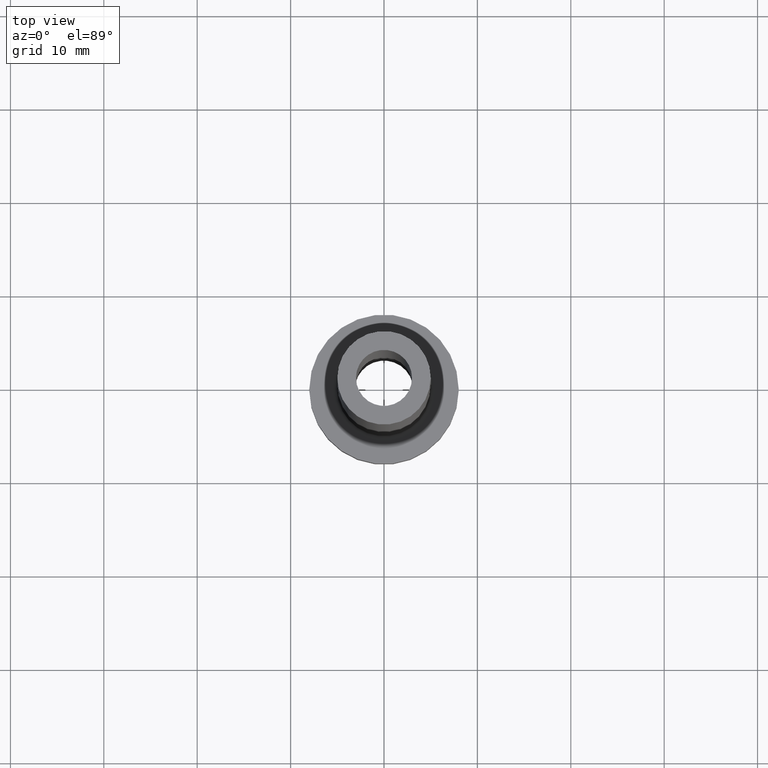
[diagram: clean part render]
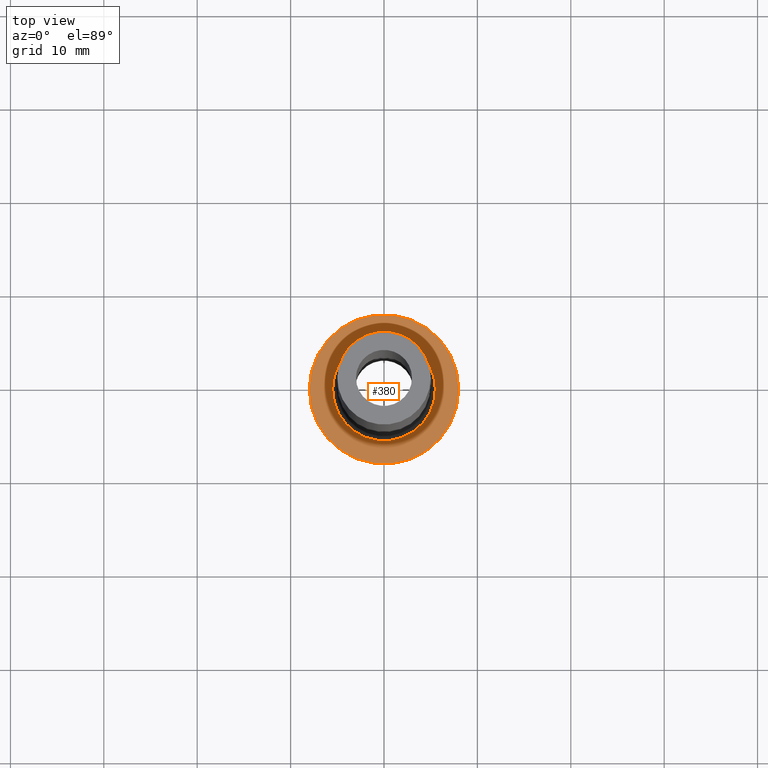
[diagram: same view with one face highlighted and labeled with its STEP entity id]
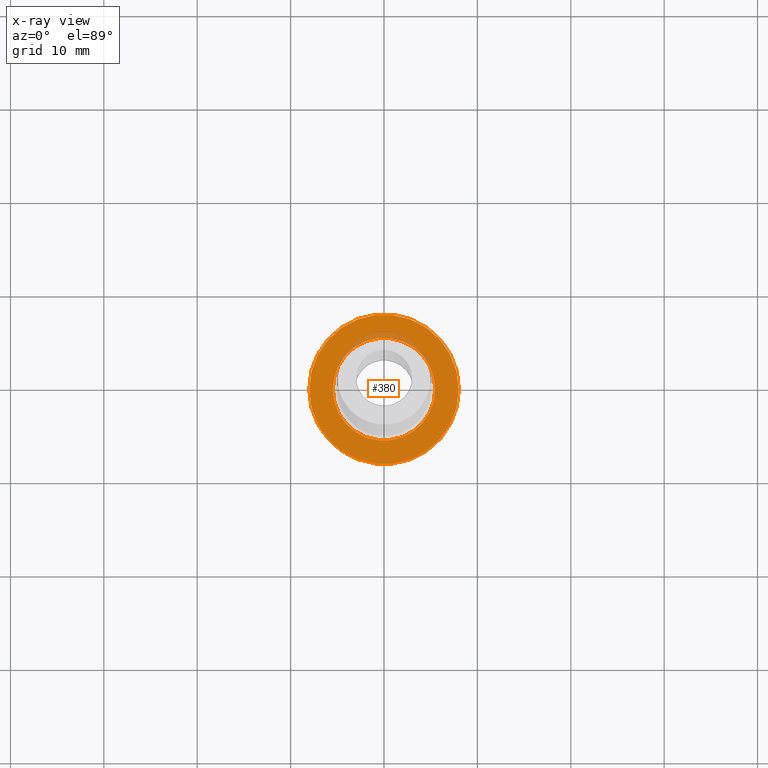
[diagram: x-ray of the same camera — body ghosted, the highlighted face saturated]
A machine part, top view. The second image highlights one B-rep face of the part: STEP entity #380.
The next image is the same camera in x-ray: the body ghosted, the highlighted face saturated — about 5% of this face is hidden behind the body in this view.
In plain terms, the highlighted planar face has unit normal (0, 0, 1).
Its self-contained STEP definition (entity closure, byte-faithful):
#2 = CARTESIAN_POINT ( 'NONE',  ( 0.000000000000000000, 0.000000000000000000, 5.000000000000000000 ) ) ;
#6 = CARTESIAN_POINT ( 'NONE',  ( 0.000000000000000000, 0.000000000000000000, 5.000000000000000000 ) ) ;
#10 = FACE_BOUND ( 'NONE', #224, .T. ) ;
#12 = AXIS2_PLACEMENT_3D ( 'NONE', #6, #69, #395 ) ;
#13 = CIRCLE ( 'NONE', #12, 8.000000000000000000 ) ;
#38 = DIRECTION ( 'NONE',  ( 1.000000000000000000, 0.000000000000000000, 0.000000000000000000 ) ) ;
#53 = AXIS2_PLACEMENT_3D ( 'NONE', #120, #152, #263 ) ;
#65 = VERTEX_POINT ( 'NONE', #271 ) ;
#69 = DIRECTION ( 'NONE',  ( 0.000000000000000000, 0.000000000000000000, 1.000000000000000000 ) ) ;
#78 = CARTESIAN_POINT ( 'NONE',  ( 0.000000000000000000, 0.000000000000000000, 5.000000000000000000 ) ) ;
#97 = CIRCLE ( 'NONE', #409, 8.000000000000000000 ) ;
#101 = VERTEX_POINT ( 'NONE', #408 ) ;
#113 = DIRECTION ( 'NONE',  ( -0.000000000000000000, -0.000000000000000000, -1.000000000000000000 ) ) ;
#120 = CARTESIAN_POINT ( 'NONE',  ( 0.000000000000000000, 0.000000000000000000, 5.000000000000000000 ) ) ;
#152 = DIRECTION ( 'NONE',  ( 0.000000000000000000, 0.000000000000000000, 1.000000000000000000 ) ) ;
#171 = CIRCLE ( 'NONE', #435, 5.500000000000000000 ) ;
#172 = ORIENTED_EDGE ( 'NONE', *, *, #233, .T. ) ;
#191 = EDGE_CURVE ( 'NONE', #101, #65, #302, .T. ) ;
#198 = DIRECTION ( 'NONE',  ( -0.000000000000000000, -0.000000000000000000, -1.000000000000000000 ) ) ;
#223 = DIRECTION ( 'NONE',  ( 0.000000000000000000, 0.000000000000000000, 1.000000000000000000 ) ) ;
#224 = EDGE_LOOP ( 'NONE', ( #306, #360 ) ) ;
#233 = EDGE_CURVE ( 'NONE', #281, #296, #13, .T. ) ;
#245 = EDGE_CURVE ( 'NONE', #296, #281, #97, .T. ) ;
#260 = PLANE ( 'NONE',  #53 ) ;
#263 = DIRECTION ( 'NONE',  ( 1.000000000000000000, 0.000000000000000000, -0.000000000000000000 ) ) ;
#264 = AXIS2_PLACEMENT_3D ( 'NONE', #2, #113, #38 ) ;
#271 = CARTESIAN_POINT ( 'NONE',  ( 5.500000000000000000, 0.000000000000000000, 5.000000000000002665 ) ) ;
#281 = VERTEX_POINT ( 'NONE', #354 ) ;
#289 = DIRECTION ( 'NONE',  ( 1.000000000000000000, 0.000000000000000000, 0.000000000000000000 ) ) ;
#296 = VERTEX_POINT ( 'NONE', #423 ) ;
#302 = CIRCLE ( 'NONE', #264, 5.500000000000000000 ) ;
#306 = ORIENTED_EDGE ( 'NONE', *, *, #311, .T. ) ;
#307 = CARTESIAN_POINT ( 'NONE',  ( 0.000000000000000000, 0.000000000000000000, 5.000000000000000000 ) ) ;
#308 = ORIENTED_EDGE ( 'NONE', *, *, #245, .T. ) ;
#311 = EDGE_CURVE ( 'NONE', #65, #101, #171, .T. ) ;
#321 = EDGE_LOOP ( 'NONE', ( #172, #308 ) ) ;
#354 = CARTESIAN_POINT ( 'NONE',  ( -8.000000000000000000, 0.000000000000000000, 5.000000000000000000 ) ) ;
#360 = ORIENTED_EDGE ( 'NONE', *, *, #191, .T. ) ;
#380 = ADVANCED_FACE ( 'NONE', ( #10, #402 ), #260, .T. ) ;
#395 = DIRECTION ( 'NONE',  ( 1.000000000000000000, 0.000000000000000000, 0.000000000000000000 ) ) ;
#402 = FACE_OUTER_BOUND ( 'NONE', #321, .T. ) ;
#407 = DIRECTION ( 'NONE',  ( 1.000000000000000000, 0.000000000000000000, 0.000000000000000000 ) ) ;
#408 = CARTESIAN_POINT ( 'NONE',  ( -5.500000000000000000, 6.735557395310442023E-16, 5.000000000000002665 ) ) ;
#409 = AXIS2_PLACEMENT_3D ( 'NONE', #78, #223, #289 ) ;
#423 = CARTESIAN_POINT ( 'NONE',  ( 8.000000000000000000, 9.797174393178825657E-16, 5.000000000000000000 ) ) ;
#435 = AXIS2_PLACEMENT_3D ( 'NONE', #307, #198, #407 ) ;